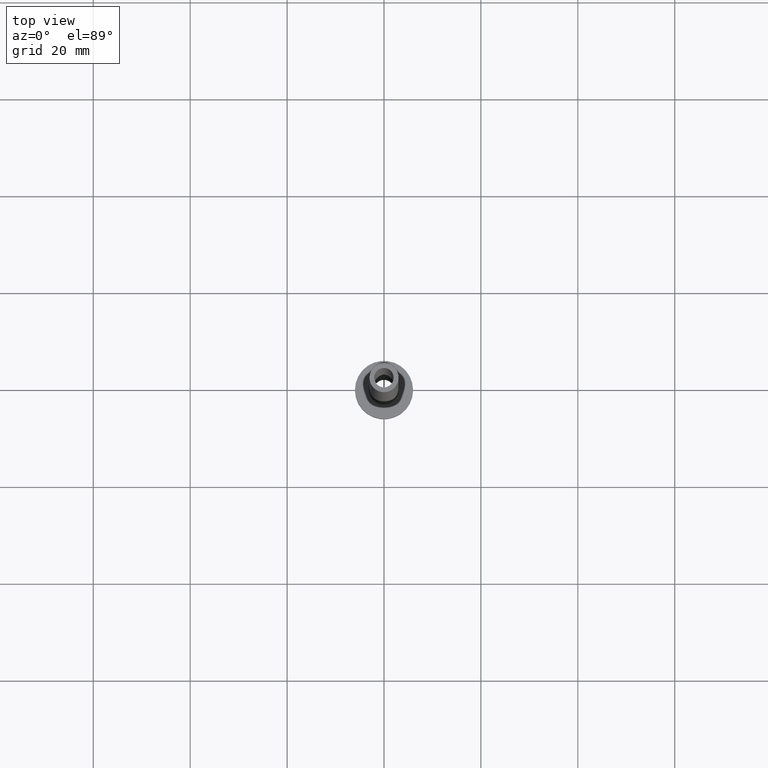
[diagram: clean part render]
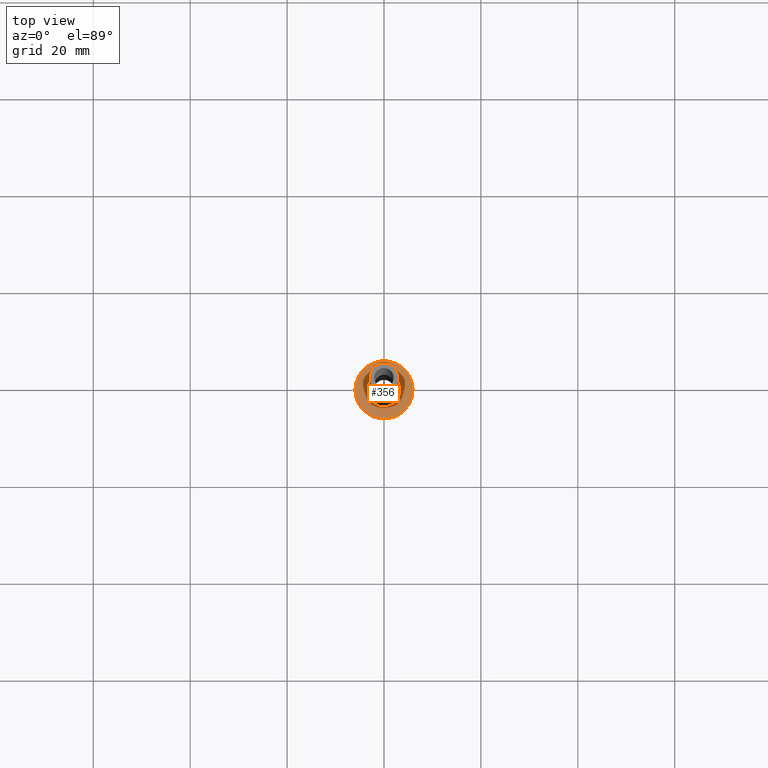
[diagram: same view with one face highlighted and labeled with its STEP entity id]
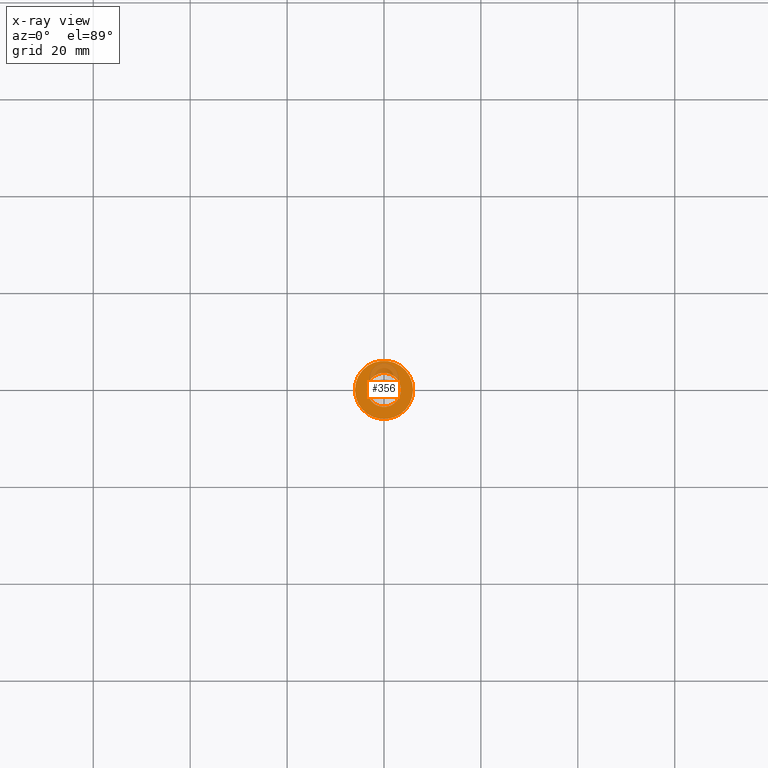
[diagram: x-ray of the same camera — body ghosted, the highlighted face saturated]
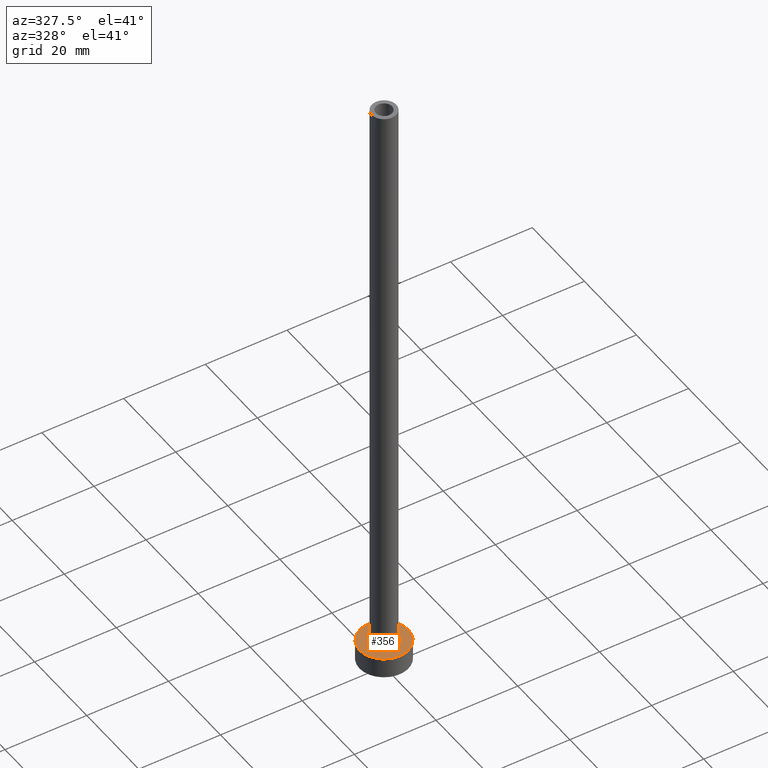
[diagram: same view with one face highlighted and labeled with its STEP entity id]
A machine part, top view. The second image highlights one B-rep face of the part: STEP entity #356.
The next image is the same camera in x-ray: the body ghosted, the highlighted face saturated — about 15% of this face is hidden behind the body in this view.
A second angle (auxiliary view) of the same face is appended — the face is thin or edge-on in the first view.
In plain terms, the highlighted planar face has unit normal (0, 0, 1).
Its self-contained STEP definition (entity closure, byte-faithful):
#4 = FACE_OUTER_BOUND ( 'NONE', #336, .T. ) ;
#12 = CARTESIAN_POINT ( 'NONE',  ( 0.000000000000000000, 0.000000000000000000, 5.000000000000000000 ) ) ;
#18 = CARTESIAN_POINT ( 'NONE',  ( -6.000000000000000888, 0.000000000000000000, 5.000000000000000000 ) ) ;
#26 = EDGE_CURVE ( 'NONE', #354, #346, #42, .T. ) ;
#42 = CIRCLE ( 'NONE', #112, 6.000000000000000888 ) ;
#47 = CARTESIAN_POINT ( 'NONE',  ( -3.500000000000000444, 4.286263797015737088E-16, 5.000000000000002665 ) ) ;
#50 = EDGE_LOOP ( 'NONE', ( #334, #86 ) ) ;
#65 = PLANE ( 'NONE',  #278 ) ;
#86 = ORIENTED_EDGE ( 'NONE', *, *, #326, .T. ) ;
#94 = VERTEX_POINT ( 'NONE', #372 ) ;
#103 = DIRECTION ( 'NONE',  ( 1.000000000000000000, 0.000000000000000000, -0.000000000000000000 ) ) ;
#112 = AXIS2_PLACEMENT_3D ( 'NONE', #12, #146, #173 ) ;
#114 = DIRECTION ( 'NONE',  ( 0.000000000000000000, 0.000000000000000000, 1.000000000000000000 ) ) ;
#140 = CARTESIAN_POINT ( 'NONE',  ( 0.000000000000000000, 0.000000000000000000, 5.000000000000000000 ) ) ;
#145 = CARTESIAN_POINT ( 'NONE',  ( 0.000000000000000000, 0.000000000000000000, 5.000000000000000000 ) ) ;
#146 = DIRECTION ( 'NONE',  ( 0.000000000000000000, 0.000000000000000000, 1.000000000000000000 ) ) ;
#148 = CIRCLE ( 'NONE', #430, 6.000000000000000888 ) ;
#161 = DIRECTION ( 'NONE',  ( 1.000000000000000000, 0.000000000000000000, 0.000000000000000000 ) ) ;
#173 = DIRECTION ( 'NONE',  ( 1.000000000000000000, 0.000000000000000000, 0.000000000000000000 ) ) ;
#177 = DIRECTION ( 'NONE',  ( -0.000000000000000000, -0.000000000000000000, -1.000000000000000000 ) ) ;
#199 = AXIS2_PLACEMENT_3D ( 'NONE', #402, #364, #335 ) ;
#214 = CIRCLE ( 'NONE', #199, 3.500000000000000444 ) ;
#274 = DIRECTION ( 'NONE',  ( 0.000000000000000000, 0.000000000000000000, 1.000000000000000000 ) ) ;
#278 = AXIS2_PLACEMENT_3D ( 'NONE', #140, #274, #103 ) ;
#309 = EDGE_CURVE ( 'NONE', #94, #315, #355, .T. ) ;
#315 = VERTEX_POINT ( 'NONE', #47 ) ;
#317 = EDGE_CURVE ( 'NONE', #346, #354, #148, .T. ) ;
#321 = FACE_BOUND ( 'NONE', #50, .T. ) ;
#326 = EDGE_CURVE ( 'NONE', #315, #94, #214, .T. ) ;
#334 = ORIENTED_EDGE ( 'NONE', *, *, #309, .T. ) ;
#335 = DIRECTION ( 'NONE',  ( 1.000000000000000000, 0.000000000000000000, 0.000000000000000000 ) ) ;
#336 = EDGE_LOOP ( 'NONE', ( #420, #416 ) ) ;
#337 = CARTESIAN_POINT ( 'NONE',  ( 0.000000000000000000, 0.000000000000000000, 5.000000000000000000 ) ) ;
#346 = VERTEX_POINT ( 'NONE', #18 ) ;
#354 = VERTEX_POINT ( 'NONE', #428 ) ;
#355 = CIRCLE ( 'NONE', #422, 3.500000000000000444 ) ;
#356 = ADVANCED_FACE ( 'NONE', ( #321, #4 ), #65, .T. ) ;
#364 = DIRECTION ( 'NONE',  ( -0.000000000000000000, -0.000000000000000000, -1.000000000000000000 ) ) ;
#372 = CARTESIAN_POINT ( 'NONE',  ( 3.500000000000000444, 0.000000000000000000, 5.000000000000002665 ) ) ;
#374 = DIRECTION ( 'NONE',  ( 1.000000000000000000, 0.000000000000000000, 0.000000000000000000 ) ) ;
#402 = CARTESIAN_POINT ( 'NONE',  ( 0.000000000000000000, 0.000000000000000000, 5.000000000000000000 ) ) ;
#416 = ORIENTED_EDGE ( 'NONE', *, *, #26, .T. ) ;
#420 = ORIENTED_EDGE ( 'NONE', *, *, #317, .T. ) ;
#422 = AXIS2_PLACEMENT_3D ( 'NONE', #145, #177, #374 ) ;
#428 = CARTESIAN_POINT ( 'NONE',  ( 6.000000000000000888, 7.347880794884120722E-16, 5.000000000000000000 ) ) ;
#430 = AXIS2_PLACEMENT_3D ( 'NONE', #337, #114, #161 ) ;